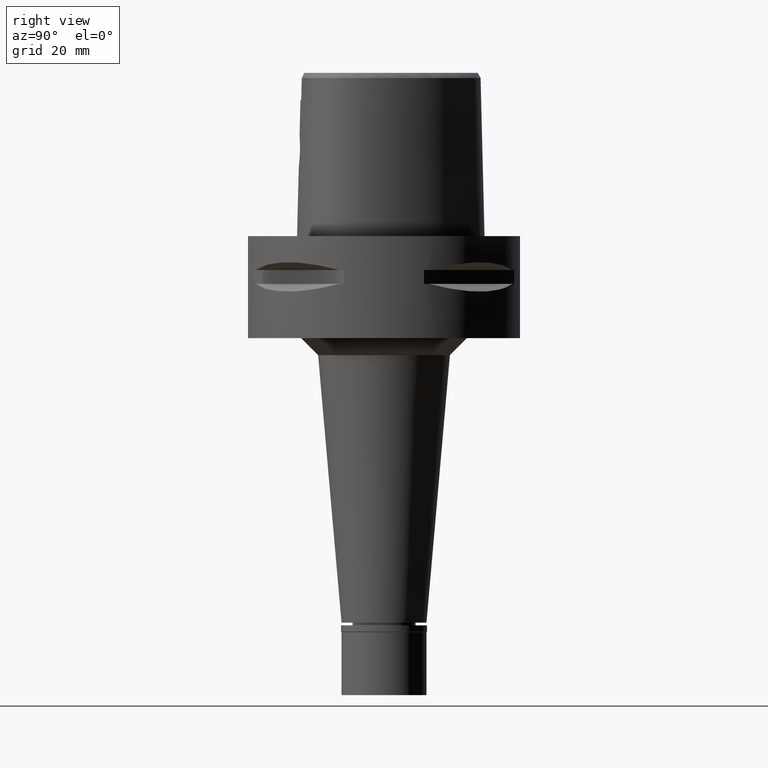
[diagram: clean part render]
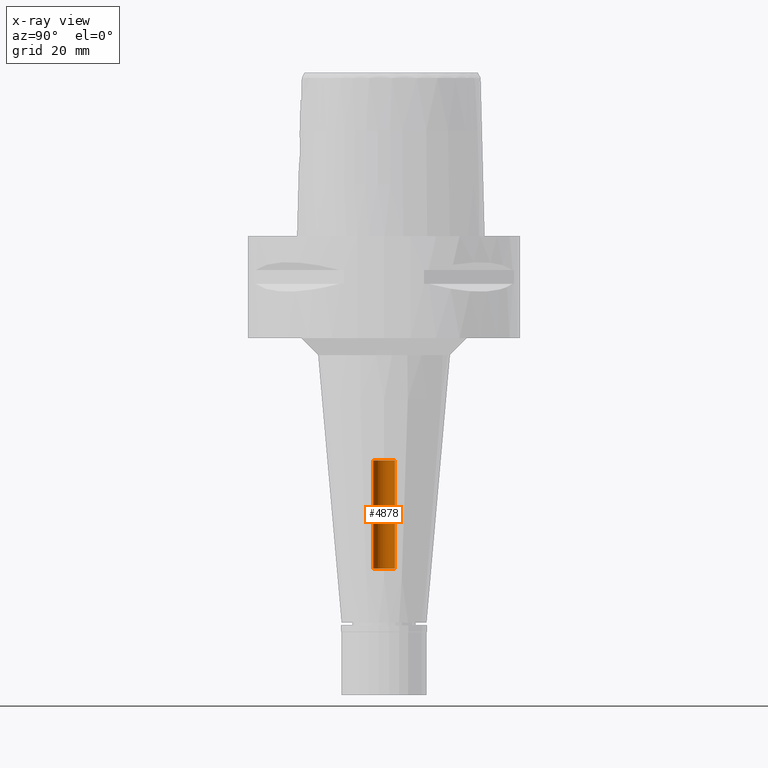
[diagram: x-ray — body ghosted, one internal face saturated and labeled with its STEP entity id]
A machine part, right view, then the same camera in x-ray: the body is ghosted and one INTERNAL B-rep face — a face not visible from any outside direction — is saturated and labeled: STEP entity #4878.
In plain terms, the highlighted cylindrical surface (edge-blend (fillet) strip) has radius 3.2 mm, axis along (0, 0, -1).
Its self-contained STEP definition (entity closure, byte-faithful):
#1 = CARTESIAN_POINT ( 'NONE',  ( 0.0000000000000000000, -3.200000000000000178, -97.79999999999999716 ) ) ;
#125 = LINE ( 'NONE', #2869, #708 ) ;
#130 = DIRECTION ( 'NONE',  ( 0.0000000000000000000, -1.000000000000000000, 0.0000000000000000000 ) ) ;
#149 = VERTEX_POINT ( 'NONE', #190 ) ;
#190 = CARTESIAN_POINT ( 'NONE',  ( 0.0000000000000000000, 3.200000000000000178, -97.79999999999999716 ) ) ;
#454 = EDGE_CURVE ( 'NONE', #4770, #615, #125, .T. ) ;
#615 = VERTEX_POINT ( 'NONE', #2967 ) ;
#708 = VECTOR ( 'NONE', #867, 1000.000000000000000 ) ;
#867 = DIRECTION ( 'NONE',  ( 0.0000000000000000000, 0.0000000000000000000, 1.000000000000000000 ) ) ;
#1008 = DIRECTION ( 'NONE',  ( 0.0000000000000000000, 0.0000000000000000000, 1.000000000000000000 ) ) ;
#1198 = ORIENTED_EDGE ( 'NONE', *, *, #454, .F. ) ;
#1226 = DIRECTION ( 'NONE',  ( 0.0000000000000000000, 0.0000000000000000000, -1.000000000000000000 ) ) ;
#1400 = FACE_OUTER_BOUND ( 'NONE', #2915, .T. ) ;
#1477 = DIRECTION ( 'NONE',  ( 0.0000000000000000000, 0.0000000000000000000, 1.000000000000000000 ) ) ;
#2038 = ORIENTED_EDGE ( 'NONE', *, *, #2456, .T. ) ;
#2047 = ORIENTED_EDGE ( 'NONE', *, *, #3176, .T. ) ;
#2050 = CIRCLE ( 'NONE', #3967, 3.200000000000000178 ) ;
#2079 = ORIENTED_EDGE ( 'NONE', *, *, #2110, .T. ) ;
#2110 = EDGE_CURVE ( 'NONE', #4588, #615, #4488, .T. ) ;
#2238 = AXIS2_PLACEMENT_3D ( 'NONE', #4230, #1008, #4653 ) ;
#2456 = EDGE_CURVE ( 'NONE', #149, #4588, #3876, .T. ) ;
#2604 = CARTESIAN_POINT ( 'NONE',  ( 0.0000000000000000000, 3.200000000000000178, -97.79999999999999716 ) ) ;
#2869 = CARTESIAN_POINT ( 'NONE',  ( 0.0000000000000000000, -3.200000000000000178, -97.79999999999999716 ) ) ;
#2882 = CARTESIAN_POINT ( 'NONE',  ( 0.0000000000000000000, 3.200000000000000178, -66.00000000000000000 ) ) ;
#2915 = EDGE_LOOP ( 'NONE', ( #2079, #1198, #2047, #2038 ) ) ;
#2967 = CARTESIAN_POINT ( 'NONE',  ( 0.0000000000000000000, -3.200000000000000178, -66.00000000000000000 ) ) ;
#3000 = CARTESIAN_POINT ( 'NONE',  ( 0.0000000000000000000, 1.303514053011999969E-14, 6.440000000000000391 ) ) ;
#3176 = EDGE_CURVE ( 'NONE', #4770, #149, #2050, .T. ) ;
#3703 = DIRECTION ( 'NONE',  ( 0.0000000000000000000, 0.0000000000000000000, -1.000000000000000000 ) ) ;
#3876 = LINE ( 'NONE', #2604, #4903 ) ;
#3967 = AXIS2_PLACEMENT_3D ( 'NONE', #4813, #1226, #4413 ) ;
#4230 = CARTESIAN_POINT ( 'NONE',  ( 0.0000000000000000000, 1.303514053011999969E-14, -66.00000000000000000 ) ) ;
#4336 = AXIS2_PLACEMENT_3D ( 'NONE', #3000, #3703, #130 ) ;
#4413 = DIRECTION ( 'NONE',  ( 0.0000000000000000000, -1.000000000000000000, 0.0000000000000000000 ) ) ;
#4488 = CIRCLE ( 'NONE', #2238, 3.200000000000000178 ) ;
#4588 = VERTEX_POINT ( 'NONE', #2882 ) ;
#4653 = DIRECTION ( 'NONE',  ( 0.0000000000000000000, 1.000000000000000000, 0.0000000000000000000 ) ) ;
#4770 = VERTEX_POINT ( 'NONE', #1 ) ;
#4813 = CARTESIAN_POINT ( 'NONE',  ( 0.0000000000000000000, 1.303514053011999969E-14, -97.79999999999999716 ) ) ;
#4878 = ADVANCED_FACE ( 'NONE', ( #1400 ), #5012, .F. ) ;
#4903 = VECTOR ( 'NONE', #1477, 1000.000000000000000 ) ;
#5012 = CYLINDRICAL_SURFACE ( 'NONE', #4336, 3.200000000000000178 ) ;